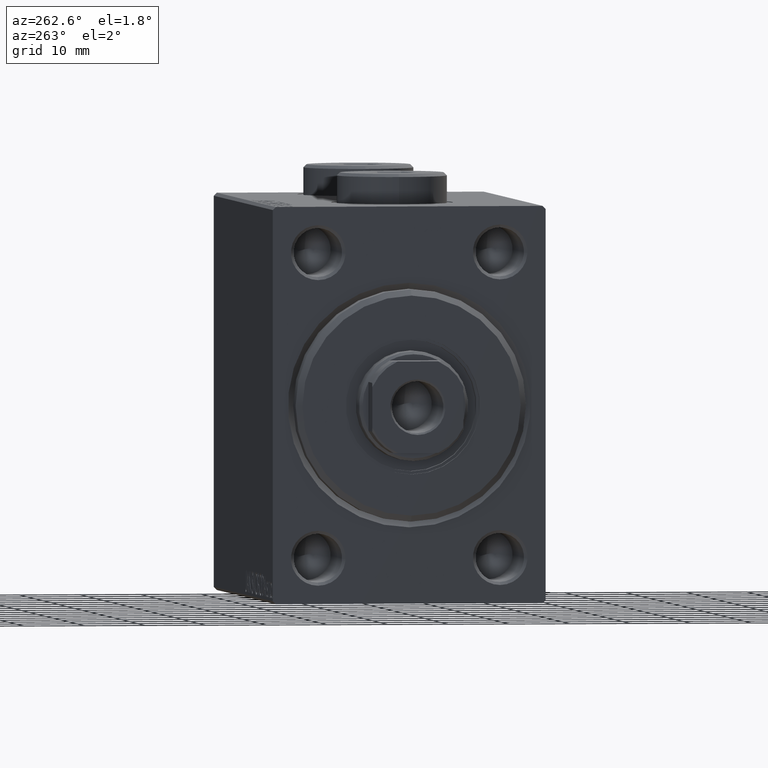
[diagram: clean part render]
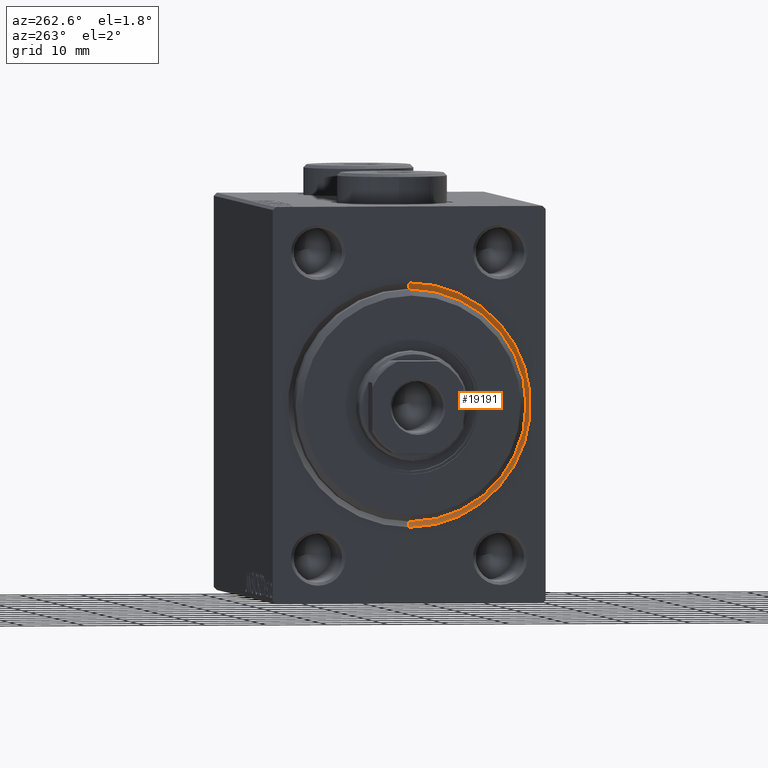
[diagram: same view with one face highlighted and labeled with its STEP entity id]
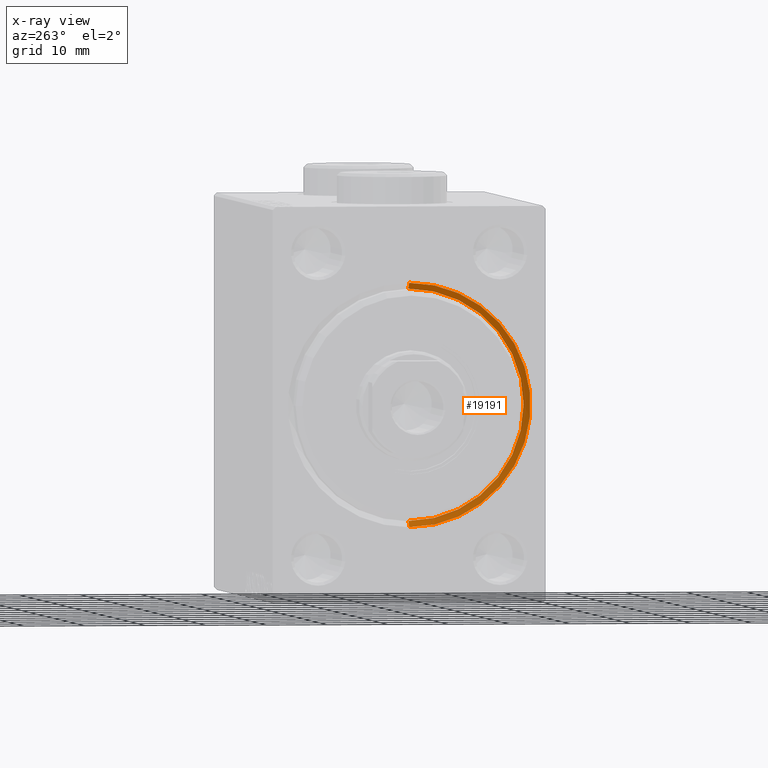
[diagram: x-ray of the same camera — body ghosted, the highlighted face saturated]
A machine part, auxiliary view. The second image highlights one B-rep face of the part: STEP entity #19191.
The next image is the same camera in x-ray: the body ghosted, the highlighted face saturated — about 0% of this face is hidden behind the body in this view.
In plain terms, the highlighted conical surface has half-angle 45 deg.
Its self-contained STEP definition (entity closure, byte-faithful):
#2712 = CARTESIAN_POINT ( 'NONE',  ( 0.9999999999999870104, 0.000000000000000000, 19.00000000000000000 ) ) ;
#2797 = VECTOR ( 'NONE', #38355, 1000.000000000000000 ) ;
#2833 = DIRECTION ( 'NONE',  ( -0.7071067811865463515, 8.659560562354950115E-17, -0.7071067811865487940 ) ) ;
#3274 = ORIENTED_EDGE ( 'NONE', *, *, #39736, .T. ) ;
#3838 = AXIS2_PLACEMENT_3D ( 'NONE', #30454, #33687, #9243 ) ;
#3969 = DIRECTION ( 'NONE',  ( 1.000000000000000000, 0.000000000000000000, 0.000000000000000000 ) ) ;
#4934 = CONICAL_SURFACE ( 'NONE', #24076, 19.00000000000000000, 0.7853981633974500554 ) ;
#4995 = VERTEX_POINT ( 'NONE', #18953 ) ;
#5052 = VERTEX_POINT ( 'NONE', #8340 ) ;
#5239 = VERTEX_POINT ( 'NONE', #2712 ) ;
#6790 = CIRCLE ( 'NONE', #3838, 19.00000000000000000 ) ;
#8340 = CARTESIAN_POINT ( 'NONE',  ( 0.000000000000000000, 0.000000000000000000, 19.99999999999998934 ) ) ;
#9243 = DIRECTION ( 'NONE',  ( 0.000000000000000000, 0.000000000000000000, -1.000000000000000000 ) ) ;
#10564 = ORIENTED_EDGE ( 'NONE', *, *, #22146, .F. ) ;
#10787 = FACE_OUTER_BOUND ( 'NONE', #39935, .T. ) ;
#13743 = CARTESIAN_POINT ( 'NONE',  ( 0.9999999999999870104, 2.326828918379970970E-15, -19.00000000000000000 ) ) ;
#14106 = AXIS2_PLACEMENT_3D ( 'NONE', #41795, #3969, #34872 ) ;
#17707 = DIRECTION ( 'NONE',  ( 0.000000000000000000, 0.000000000000000000, 1.000000000000000000 ) ) ;
#17783 = CIRCLE ( 'NONE', #14106, 19.99999999999998934 ) ;
#18953 = CARTESIAN_POINT ( 'NONE',  ( 0.000000000000000000, 2.449293598294705330E-15, -19.99999999999998934 ) ) ;
#19191 = ADVANCED_FACE ( 'NONE', ( #10787 ), #4934, .F. ) ;
#20116 = CARTESIAN_POINT ( 'NONE',  ( 0.9999999999999870104, 2.326828918379970970E-15, -19.00000000000000000 ) ) ;
#20574 = ORIENTED_EDGE ( 'NONE', *, *, #37551, .F. ) ;
#22146 = EDGE_CURVE ( 'NONE', #5239, #5052, #42257, .T. ) ;
#23112 = LINE ( 'NONE', #20116, #41420 ) ;
#24076 = AXIS2_PLACEMENT_3D ( 'NONE', #38009, #34779, #17707 ) ;
#27731 = CARTESIAN_POINT ( 'NONE',  ( 0.9999999999999870104, 0.000000000000000000, 19.00000000000000000 ) ) ;
#30454 = CARTESIAN_POINT ( 'NONE',  ( 0.9999999999999870104, 0.000000000000000000, 0.000000000000000000 ) ) ;
#33687 = DIRECTION ( 'NONE',  ( -1.000000000000000000, 0.000000000000000000, 0.000000000000000000 ) ) ;
#34779 = DIRECTION ( 'NONE',  ( -1.000000000000000000, 0.000000000000000000, 0.000000000000000000 ) ) ;
#34872 = DIRECTION ( 'NONE',  ( 0.000000000000000000, 0.000000000000000000, -1.000000000000000000 ) ) ;
#36428 = EDGE_CURVE ( 'NONE', #5052, #4995, #17783, .T. ) ;
#37551 = EDGE_CURVE ( 'NONE', #45041, #5239, #6790, .T. ) ;
#38009 = CARTESIAN_POINT ( 'NONE',  ( 0.9999999999999870104, 0.000000000000000000, 0.000000000000000000 ) ) ;
#38355 = DIRECTION ( 'NONE',  ( -0.7071067811865463515, 0.000000000000000000, 0.7071067811865487940 ) ) ;
#39736 = EDGE_CURVE ( 'NONE', #45041, #4995, #23112, .T. ) ;
#39935 = EDGE_LOOP ( 'NONE', ( #20574, #3274, #43075, #10564 ) ) ;
#41420 = VECTOR ( 'NONE', #2833, 1000.000000000000000 ) ;
#41795 = CARTESIAN_POINT ( 'NONE',  ( 0.000000000000000000, 0.000000000000000000, 0.000000000000000000 ) ) ;
#42257 = LINE ( 'NONE', #27731, #2797 ) ;
#43075 = ORIENTED_EDGE ( 'NONE', *, *, #36428, .F. ) ;
#45041 = VERTEX_POINT ( 'NONE', #13743 ) ;